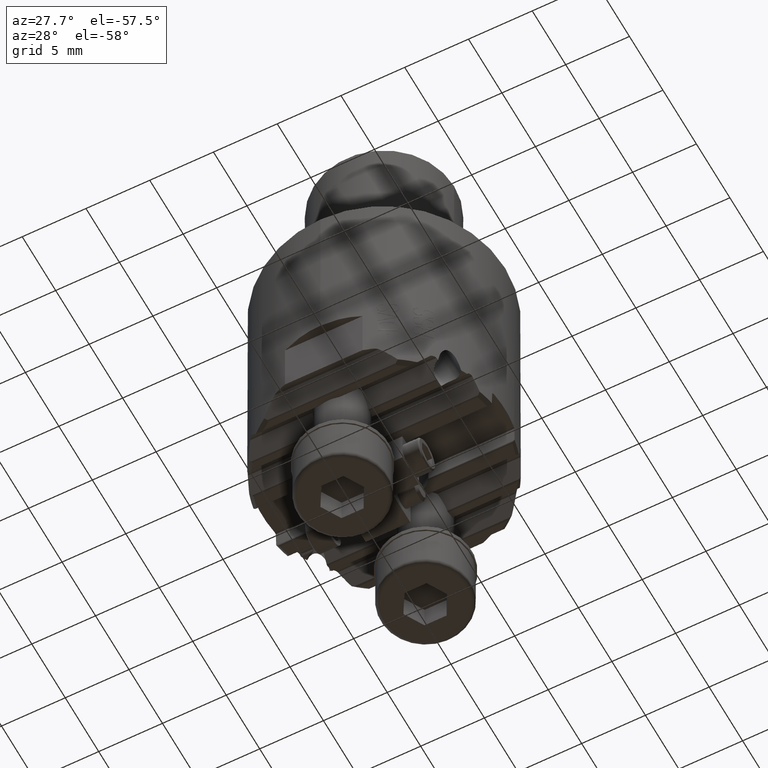
[diagram: clean part render]
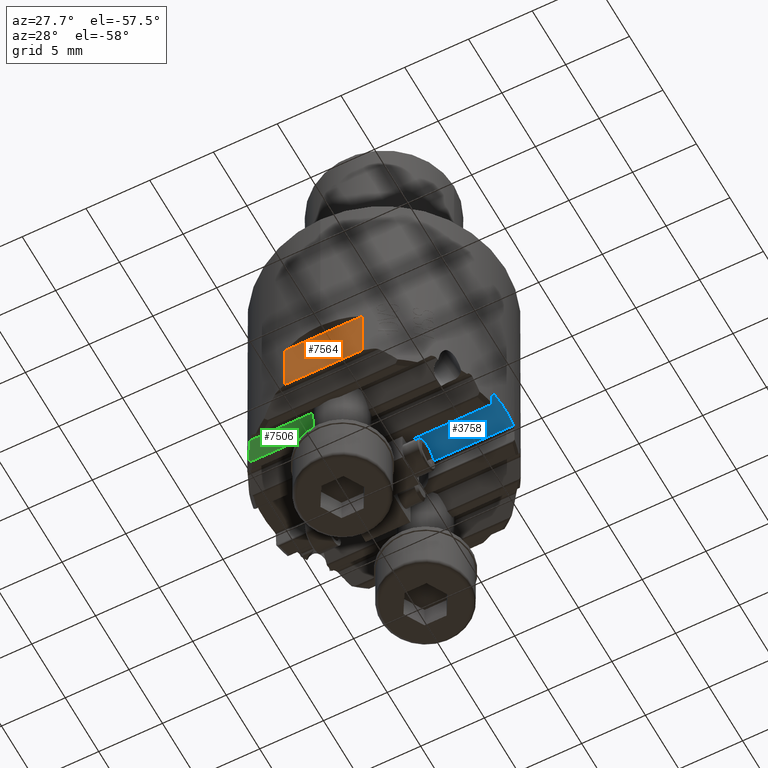
[diagram: same view with three faces highlighted in distinct colors, each labeled with its STEP entity id]
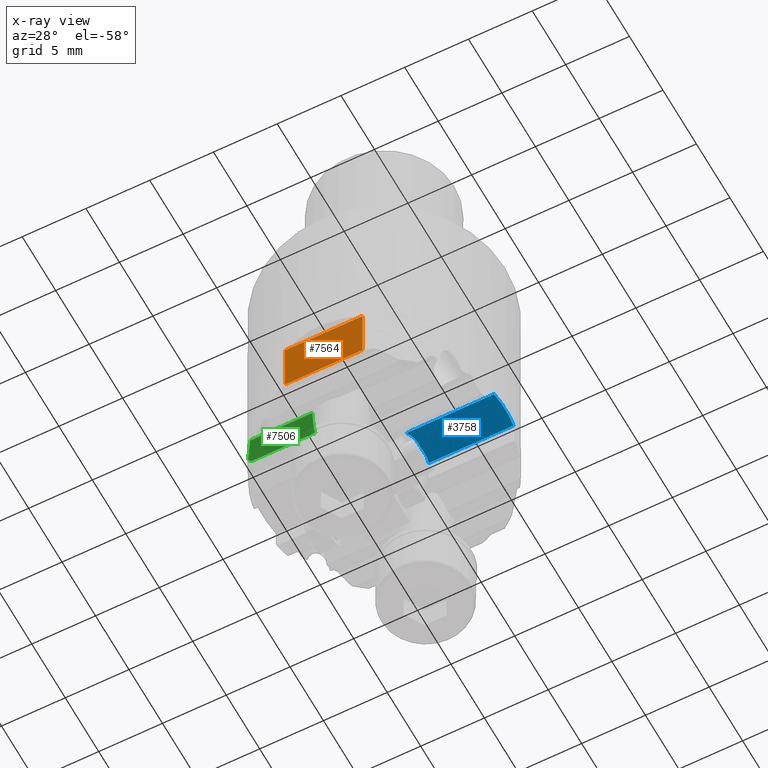
[diagram: x-ray of the same camera — body ghosted, the three highlighted faces saturated]
A machine part, auxiliary view with three faces highlighted in distinct colors.
The next image is the same camera in x-ray (body ghosted, the three faces saturated) — at least one of them is partly hidden behind the body in this view.
Their STEP definitions:

[orange] entity #7564 — the highlighted planar face has unit normal (-0, -1, 0).
#5390=VERTEX_POINT('NONE',#12239);
#6298=VERTEX_POINT('NONE',#13253);
#6938=EDGE_CURVE('NONE',#9262,#6298,#13965,.F.);
#7024=VERTEX_POINT('NONE',#14059);
#7564=ADVANCED_FACE('Fl�che33',(#14660),#14661,.T.);
#8010=EDGE_CURVE('NONE',#7024,#5390,#15136,.F.);
#8928=EDGE_CURVE('NONE',#7024,#9262,#16161,.T.);
#9262=VERTEX_POINT('NONE',#16534);
#9272=EDGE_CURVE('NONE',#5390,#6298,#16545,.F.);
#12239=CARTESIAN_POINT('',(-3.0413812651491,-9.0,-14.5));
#13253=CARTESIAN_POINT('',(-3.0413812651491,-9.0,-18.9));
#13965=LINE('',#34136,#34137);
#14059=CARTESIAN_POINT('',(3.04138126514911,-9.0,-14.5));
#14660=FACE_OUTER_BOUND('',#36544,.T.);
#14661=PLANE('',#36545);
#15136=LINE('',#38309,#38310);
#16161=LINE('',#42228,#42229);
#16534=CARTESIAN_POINT('',(3.0413812651491,-9.0,-18.9));
#16545=LINE('',#44032,#44033);
#34136=CARTESIAN_POINT('',(9.501,-9.0,-18.9));
#34137=VECTOR('',#50113,1.0);
#36544=EDGE_LOOP('',(#50839,#50840,#50841,#50842));
#36545=AXIS2_PLACEMENT_3D('',#50843,#50844,#50845);
#38309=CARTESIAN_POINT('',(9.501,-9.0,-14.5));
#38310=VECTOR('',#51263,1.0);
#42228=CARTESIAN_POINT('',(3.04138126514911,-9.0,-21.5364228970581));
#42229=VECTOR('',#52369,1.0);
#44032=CARTESIAN_POINT('',(-3.04138126514911,-9.0,-21.5364228970581));
#44033=VECTOR('',#52867,1.0);
#50113=DIRECTION('',(1.0,-2.76920173874876E-017,-0.0));
#50839=ORIENTED_EDGE('',*,*,#9272,.T.);
#50840=ORIENTED_EDGE('',*,*,#6938,.F.);
#50841=ORIENTED_EDGE('',*,*,#8928,.F.);
#50842=ORIENTED_EDGE('',*,*,#8010,.T.);
#50843=CARTESIAN_POINT('',(9.501,-9.0,-14.5));
#50844=DIRECTION('',(-2.76920173874876E-017,-1.0,0.0));
#50845=DIRECTION('',(0.0,0.0,1.0));
#51263=DIRECTION('',(1.0,-2.76920173874876E-017,-0.0));
#52369=DIRECTION('',(0.0,0.0,-1.0));
#52867=DIRECTION('',(0.0,0.0,1.0));

[blue] entity #3758 — the highlighted planar face has unit normal (0, 0, -1).
#3448=VERTEX_POINT('NONE',#10092);
#3758=ADVANCED_FACE('NONE',(#10431),#10432,.T.);
#4114=EDGE_CURVE('NONE',#3448,#8840,#10832,.F.);
#5436=VERTEX_POINT('NONE',#12289);
#5636=EDGE_CURVE('NONE',#6330,#8840,#12506,.F.);
#6330=VERTEX_POINT('NONE',#13294);
#7402=EDGE_CURVE('NONE',#9354,#3448,#14476,.T.);
#7786=VERTEX_POINT('NONE',#14899);
#7936=EDGE_CURVE('NONE',#7786,#9354,#15059,.F.);
#8244=EDGE_CURVE('NONE',#7786,#5436,#15395,.F.);
#8840=VERTEX_POINT('NONE',#16066);
#9090=EDGE_CURVE('NONE',#5436,#6330,#16347,.T.);
#9354=VERTEX_POINT('NONE',#16635);
#10092=CARTESIAN_POINT('',(9.38774635098292,1.45609699182675,-18.74976436404));
#10431=FACE_OUTER_BOUND('',#19775,.T.);
#10432=PLANE('',#19776);
#10832=LINE('',#21102,#21103);
#12289=CARTESIAN_POINT('',(2.85,-0.349999999999997,-18.74976436404));
#12506=CIRCLE('',#28503,1.5);
#13294=CARTESIAN_POINT('',(2.85,0.850000000000002,-18.74976436404));
#14476=CIRCLE('',#35658,9.5);
#14899=CARTESIAN_POINT('',(2.51861091980359,-1.45260491487758,-18.74976436404));
#15059=LINE('',#38058,#38059);
#15395=CIRCLE('',#39163,2.0);
#16066=CARTESIAN_POINT('',(2.72209563679015,1.45609699182675,-18.74976436404));
#16347=LINE('',#43479,#43480);
#16635=CARTESIAN_POINT('',(9.38828732843608,-1.45260491487758,-18.74976436404));
#19775=EDGE_LOOP('',(#46299,#46300,#46301,#46302,#46303,#46304));
#19776=AXIS2_PLACEMENT_3D('',#46305,#46306,#46307);
#21102=CARTESIAN_POINT('',(9.501,1.45609699182675,-18.74976436404));
#21103=VECTOR('',#46734,1.0);
#28503=AXIS2_PLACEMENT_3D('',#48382,#48383,#48384);
#35658=AXIS2_PLACEMENT_3D('',#50628,#50629,#50630);
#38058=CARTESIAN_POINT('',(-9.501,-1.45260491487758,-18.74976436404));
#38059=VECTOR('',#51204,1.0);
#39163=AXIS2_PLACEMENT_3D('',#51526,#51527,#51528);
#43479=CARTESIAN_POINT('',(2.85,-0.175000000000007,-18.74976436404));
#43480=VECTOR('',#52670,1.0);
#46299=ORIENTED_EDGE('',*,*,#7936,.F.);
#46300=ORIENTED_EDGE('',*,*,#8244,.T.);
#46301=ORIENTED_EDGE('',*,*,#9090,.T.);
#46302=ORIENTED_EDGE('',*,*,#5636,.T.);
#46303=ORIENTED_EDGE('',*,*,#4114,.F.);
#46304=ORIENTED_EDGE('',*,*,#7402,.F.);
#46305=CARTESIAN_POINT('',(9.501,-5.87662116054983E-016,-18.74976436404));
#46306=DIRECTION('',(6.5981858253778E-032,2.38270319314444E-015,-1.0));
#46307=DIRECTION('',(1.0,-2.76920173874876E-017,0.0));
#46734=DIRECTION('',(1.0,-2.76920173874876E-017,-0.0));
#48382=CARTESIAN_POINT('',(1.35,0.85,-18.74976436404));
#48383=DIRECTION('',(6.5981858253778E-032,2.38270319314444E-015,-1.0));
#48384=DIRECTION('',(-2.76920173874876E-017,-1.0,-2.38270319314444E-015));
#50628=CARTESIAN_POINT('',(0.0,0.0,-18.74976436404));
#50629=DIRECTION('',(-6.5981858253778E-032,-2.38270319314444E-015,1.0));
#50630=DIRECTION('',(2.76920173874876E-017,1.0,2.38270319314444E-015));
#51204=DIRECTION('',(-1.0,2.76920173874876E-017,0.0));
#51526=CARTESIAN_POINT('',(0.85,-0.35,-18.74976436404));
#51527=DIRECTION('',(6.5981858253778E-032,2.38270319314444E-015,-1.0));
#51528=DIRECTION('',(-2.76920173874876E-017,-1.0,-2.38270319314444E-015));
#52670=DIRECTION('',(-1.41791087925985E-015,1.0,2.38270319314444E-015));

[green] entity #7506 — the highlighted planar face has unit normal (0, 0.887, 0.4617).
#3446=VERTEX_POINT('NONE',#10090);
#4370=EDGE_CURVE('NONE',#3446,#4608,#11113,.F.);
#4608=VERTEX_POINT('NONE',#11378);
#4720=VERTEX_POINT('NONE',#11503);
#5876=EDGE_CURVE('NONE',#4720,#3446,#12782,.F.);
#6204=EDGE_CURVE('NONE',#4608,#8502,#13149,.F.);
#7506=ADVANCED_FACE('NONE',(#14594),#14595,.F.);
#7840=VERTEX_POINT('NONE',#14957);
#8082=EDGE_CURVE('NONE',#7840,#8502,#15215,.F.);
#8502=VERTEX_POINT('NONE',#15680);
#9574=EDGE_CURVE('NONE',#7840,#4720,#16875,.T.);
#10090=CARTESIAN_POINT('',(-7.63348855754168,-5.32561791038275,-20.392349722647));
#11113=(B_SPLINE_CURVE(2,(#22300,#22301,#22302),.UNSPECIFIED.,.F.,.F.)B_SPLINE_CURVE_WITH_KNOTS((3,3),(1.64411052859113,1.91483589126629),.UNSPECIFIED.)RATIONAL_B_SPLINE_CURVE((1.00563573709442,1.00575383508065,1.00575801779908))BOUNDED_CURVE()REPRESENTATION_ITEM('')GEOMETRIC_REPRESENTATION_ITEM()CURVE());
#11378=CARTESIAN_POINT('',(-7.79815680433759,-5.42574883817555,-20.2));
#11503=CARTESIAN_POINT('',(-2.59863811354631,-5.32561791038275,-20.392349722647));
#12782=LINE('',#30286,#30287);
#13149=ELLIPSE('',#31050,20.5739654169019,9.5);
#14594=FACE_OUTER_BOUND('',#36254,.T.);
#14595=PLANE('',#36255);
#14957=CARTESIAN_POINT('',(-2.43218342932138,-6.07259783336436,-18.957414641393));
#15215=LINE('',#38555,#38556);
#15680=CARTESIAN_POINT('',(-7.30572074159822,-6.07259783336436,-18.957414641393));
#16875=ELLIPSE('',#44891,4.54792919742043,2.1);
#22300=CARTESIAN_POINT('',(-7.79815680432993,-5.42574883817088,-20.200000000009));
#22301=CARTESIAN_POINT('',(-7.71494875556214,-5.37514913493269,-20.2972011255596));
#22302=CARTESIAN_POINT('',(-7.63348855755271,-5.32561791038946,-20.3923497226341));
#30286=CARTESIAN_POINT('',(20.0,-5.32561791038275,-20.392349722647));
#30287=VECTOR('',#48730,1.0);
#31050=AXIS2_PLACEMENT_3D('',#49167,#49168,#49169);
#36254=EDGE_LOOP('',(#50760,#50761,#50762,#50763,#50764));
#36255=AXIS2_PLACEMENT_3D('',#50765,#50766,#50767);
#38555=CARTESIAN_POINT('',(20.0,-6.07259783336436,-18.957414641393));
#38556=VECTOR('',#51330,1.0);
#44891=AXIS2_PLACEMENT_3D('',#53178,#53179,#53180);
#48730=DIRECTION('',(1.0,-2.76920173874876E-017,-0.0));
#49167=CARTESIAN_POINT('',(0.0,0.0,-30.6227665435698));
#49168=DIRECTION('',(-2.45631194152612E-017,-0.887010833178222,-0.461748613235033));
#49169=DIRECTION('',(1.27867506263528E-017,0.461748613235033,-0.887010833178222));
#50760=ORIENTED_EDGE('',*,*,#4370,.F.);
#50761=ORIENTED_EDGE('',*,*,#5876,.F.);
#50762=ORIENTED_EDGE('',*,*,#9574,.F.);
#50763=ORIENTED_EDGE('',*,*,#8082,.T.);
#50764=ORIENTED_EDGE('',*,*,#6204,.F.);
#50765=CARTESIAN_POINT('',(20.0,-5.32561791038275,-20.392349722647));
#50766=DIRECTION('',(2.45631194152612E-017,0.887010833178222,0.461748613235033));
#50767=DIRECTION('',(-1.0,2.76920173874876E-017,0.0));
#51330=DIRECTION('',(1.0,-2.76920173874876E-017,-0.0));
#53178=CARTESIAN_POINT('',(-0.499999999999964,-5.25,-20.5376103769712));
#53179=DIRECTION('',(-2.45631194152611E-017,-0.887010833178222,-0.461748613235033));
#53180=DIRECTION('',(-3.20554156830531E-015,0.461748613235033,-0.887010833178222));